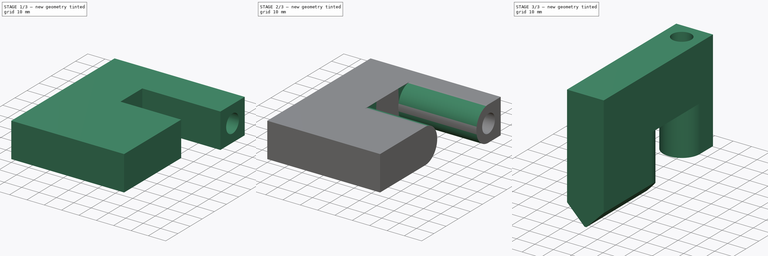
[diagram: build sequence overview — one tinted view per stage of 3, left to right]
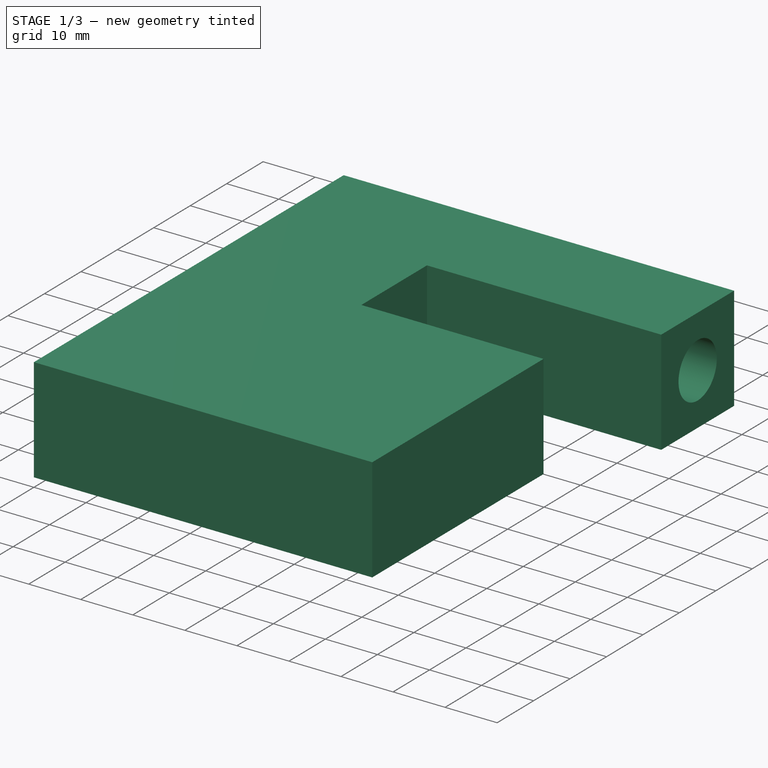
[diagram: stage 1 of 3 — iso view after this stage's code; geometry added in this stage tinted green]
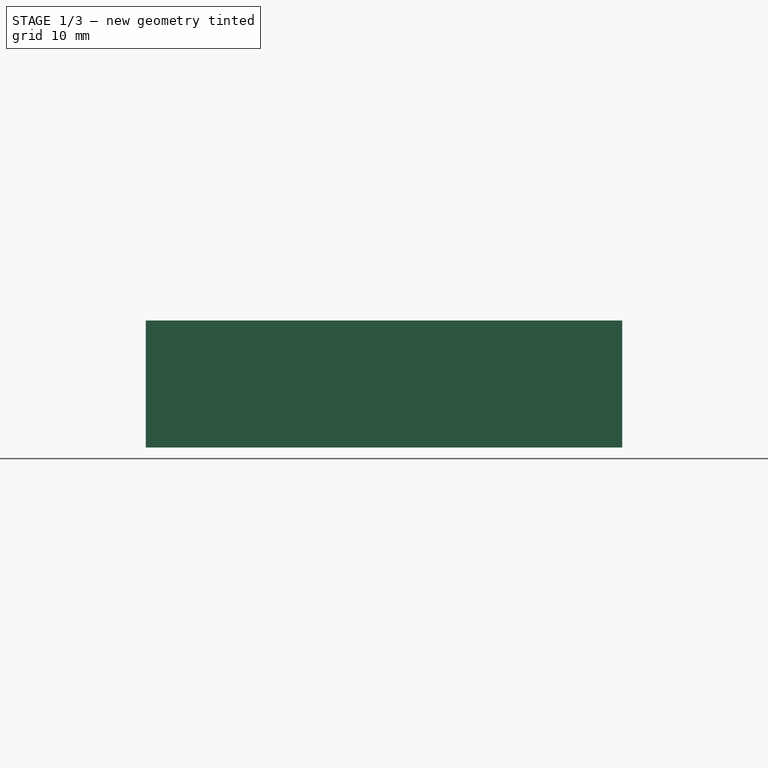
[diagram: stage 1 of 3 — front view after this stage's code; geometry added in this stage tinted green]
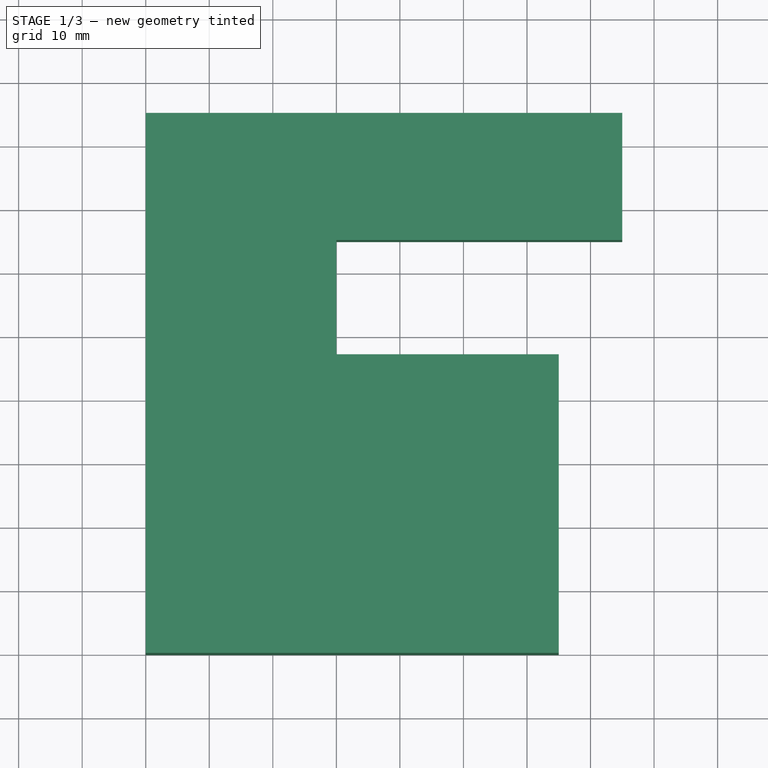
[diagram: stage 1 of 3 — top view after this stage's code; geometry added in this stage tinted green]
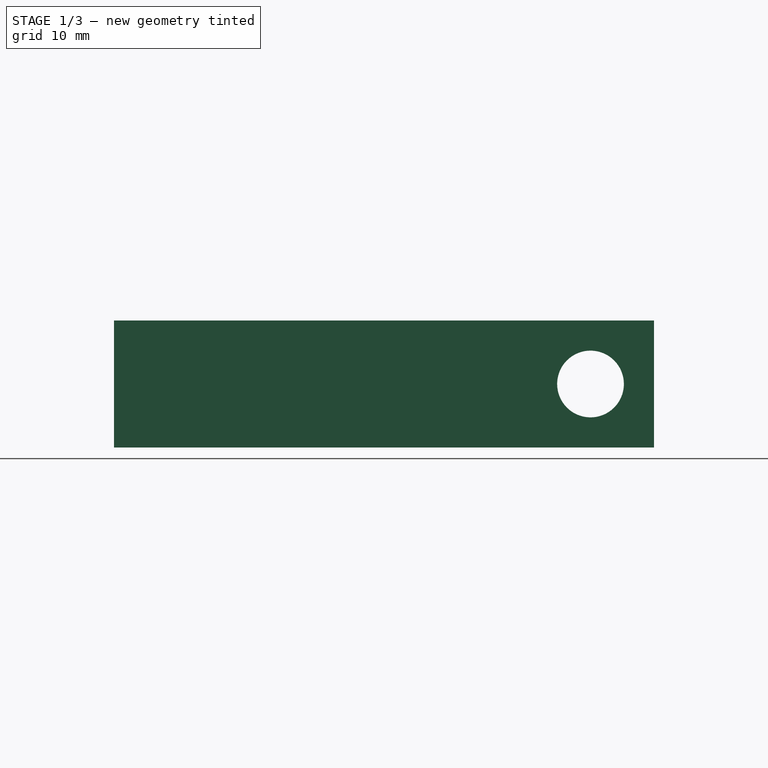
[diagram: stage 1 of 3 — right view after this stage's code; geometry added in this stage tinted green]
FCSTD DOCUMENT  (FreeCAD 0.17R7529 (Git))
Label: x_end_square_check
License: CreativeCommons Attribution-ShareAlike
LicenseURL: http://creativecommons.org/licenses/by-sa/4.0/
objects: Sketcher::SketchObject×4, App::FeaturePython×4, PartDesign::Pocket×3, PartDesign::Pad×1, Part::FeaturePython×1, PartDesign::Fillet×1, PartDesign::Body×1
note: 15 computed .brp shape members not serialized (recipe doc carries the construction recipe); baked Part::Feature solids carry a one-line shape summary decoded from their .brp

FEATURE [Sketcher::SketchObject] Sketch
  MapMode = 5
  Support = -> [XY_Plane]
  sketch-geometry (8):
    g0: LineSegment StartX=0 StartY=0 StartZ=0 EndX=65 EndY=0 EndZ=0
    g1: LineSegment StartX=65 StartY=0 StartZ=0 EndX=65 EndY=47 EndZ=0
    g2: LineSegment StartX=65 StartY=47 StartZ=0 EndX=30 EndY=47 EndZ=0
    g3: LineSegment StartX=30 StartY=47 StartZ=0 EndX=30 EndY=65 EndZ=0
    g4: LineSegment StartX=30 StartY=65 StartZ=0 EndX=75 EndY=65 EndZ=0
    g5: LineSegment StartX=75 StartY=65 StartZ=0 EndX=75 EndY=85 EndZ=0
    g6: LineSegment StartX=75 StartY=85 StartZ=0 EndX=0 EndY=85 EndZ=0
    g7: LineSegment StartX=0 StartY=85 StartZ=0 EndX=0 EndY=0 EndZ=0
  constraints (23):
    c: Horizontal(g0)
    c: Coincident(g0,g1)
    c: Vertical(g1)
    c: Coincident(g1,g2)
    c: Horizontal(g2)
    c: Coincident(g2,g3)
    c: Coincident(g3,g4)
    c: Horizontal(g4)
    c: Coincident(g4,g5)
    c: Vertical(g5)
    c: Coincident(g5,g6)
    c: Horizontal(g6)
    c: Coincident(g6,g7)
    c: Coincident(g0,g7)
    c: Coincident(g0,g-1)
    c: Vertical(g7)
    c: Vertical(g3)
    c: DistanceX(g4,g4) = 45
    c: DistanceY(g3,g3) = 18
    c: DistanceY(g5,g5) = 20
    c: DistanceX(g1,g4) = 10
    c: DistanceX(g0,g0) = 65
    c: DistanceY(g7,g7) = 85
FEATURE [PartDesign::Pad] Pad
  Length = 20
  Length2 = 100
  Profile = -> Sketch
  Type = 0
FEATURE [Sketcher::SketchObject] Sketch001
  MapMode = 5
  Placement = pos=(75,0,0) rot=(0.57735,0.57735,0.57735;2.0944rad)
  Support = -> [Pad]
  sketch-geometry (1):
    g0: Circle CenterX=75 CenterY=10 CenterZ=0 NormalX=0 NormalY=0 NormalZ=1 Radius=5.25
  constraints (3):
    c: DistanceX(g-1,g0) = 75
    c: DistanceY(g-1,g0) = 10
    c: Radius(g0) = 5.25
FEATURE [PartDesign::Pocket] Pocket
  BaseFeature = -> Pad
  Length = 5
  Profile = -> Sketch001
  Type = 1
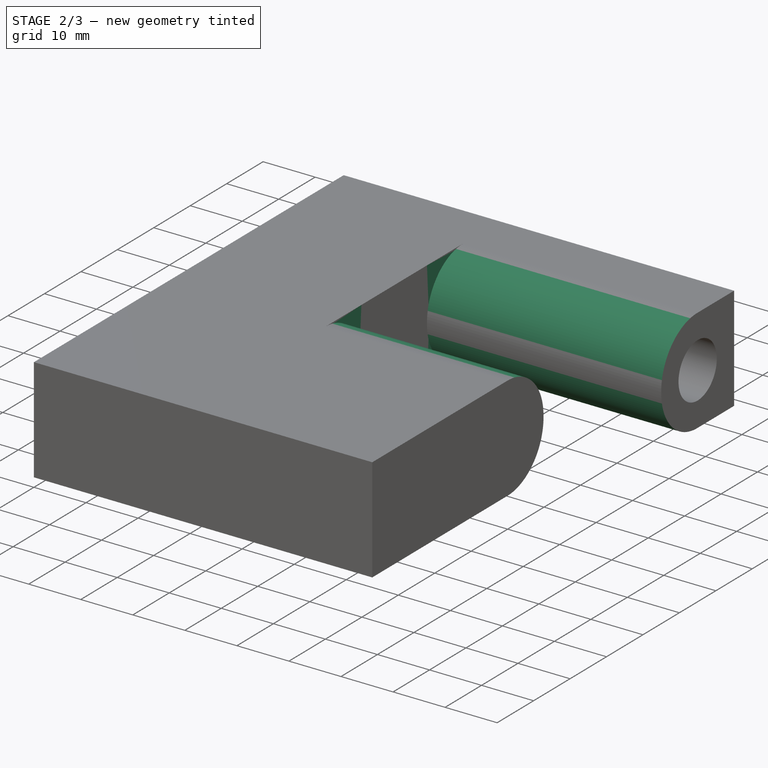
[diagram: stage 2 of 3 — iso view after this stage's code; geometry added in this stage tinted green]
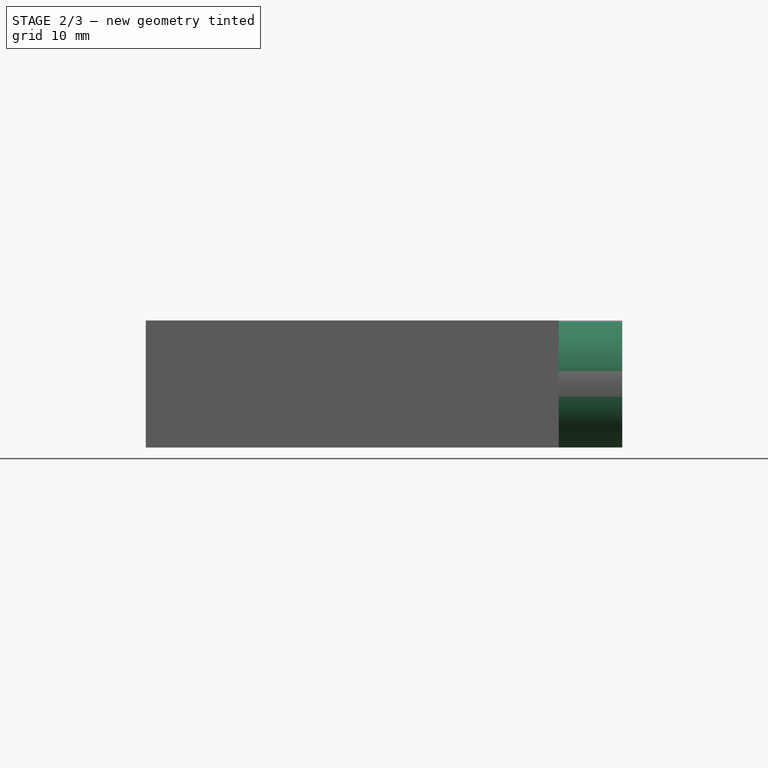
[diagram: stage 2 of 3 — front view after this stage's code; geometry added in this stage tinted green]
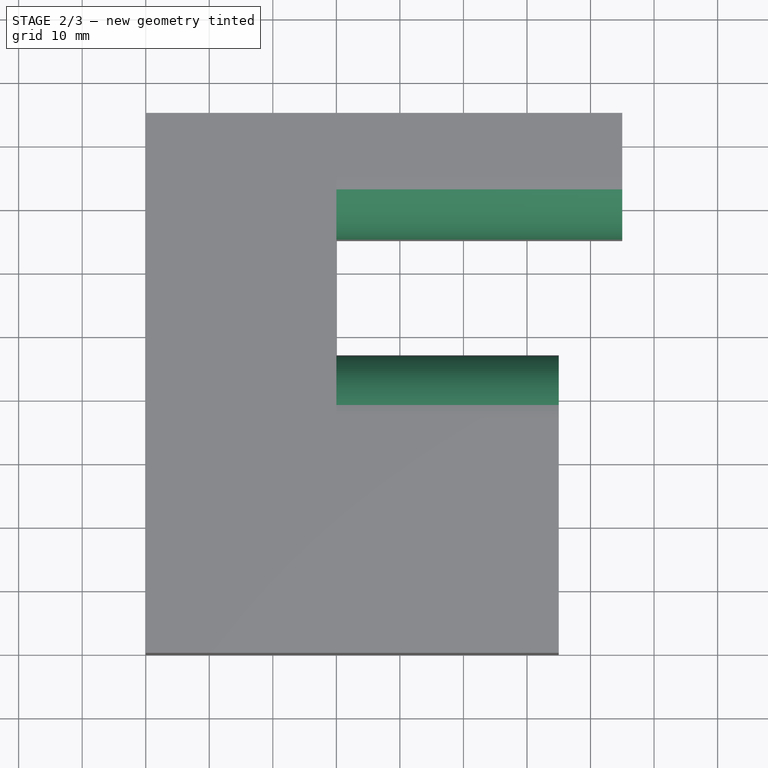
[diagram: stage 2 of 3 — top view after this stage's code; geometry added in this stage tinted green]
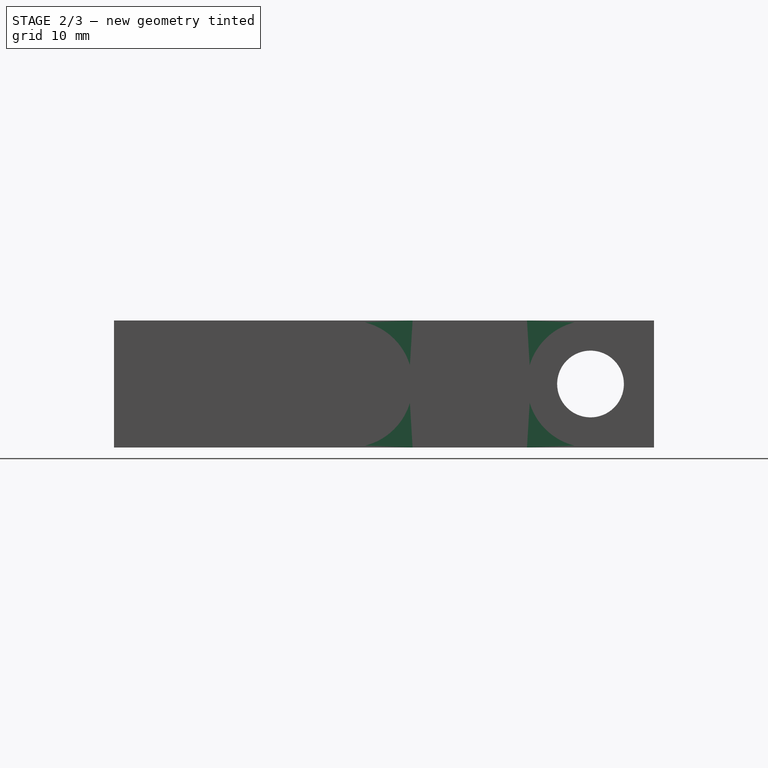
[diagram: stage 2 of 3 — right view after this stage's code; geometry added in this stage tinted green]
FEATURE [Part::FeaturePython] z_carriage_motor_v2_7_01  # a2plus imported part (geometry in sourceFile) (typed FeaturePython)
  Placement = pos=(0,0,0) rot=(0,0,1;3.14159rad)
  fixedPosition = true
  sourceFile = <userpath>/shared-j/devel/lulzbot/TAZ/Olive/production_parts/printed_parts/z_carriage_motor/z_carriage_motor_v2.7.fcstd
  timeLastImport = 1460053813
  updateColors = true
FEATURE [PartDesign::Fillet] Fillet
  Base = -> Pocket [Edge19,Edge12,Edge17,Edge14]
  BaseFeature = -> Pocket
  Radius = 9.9
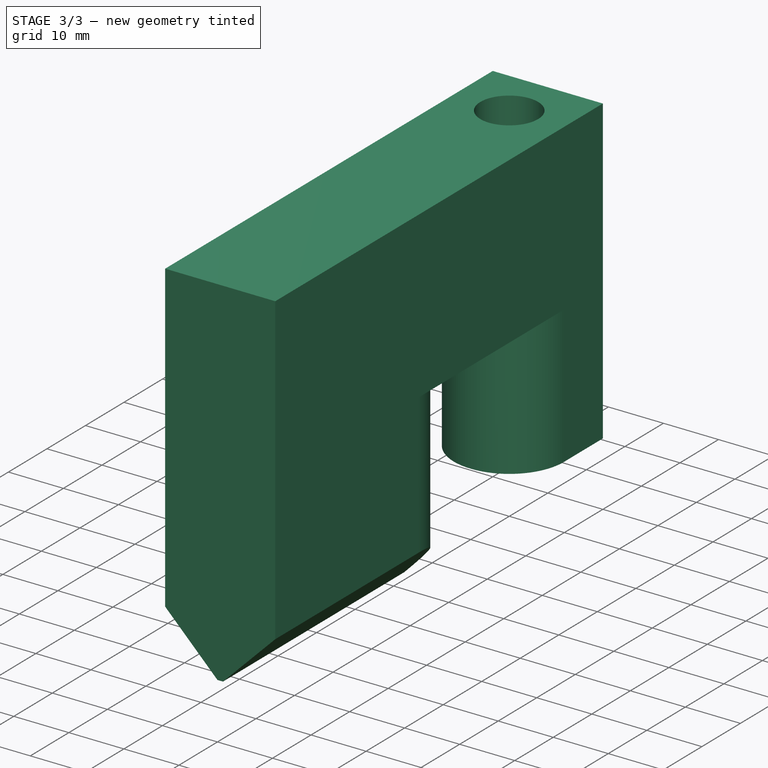
[diagram: stage 3 of 3 — iso view after this stage's code; geometry added in this stage tinted green]
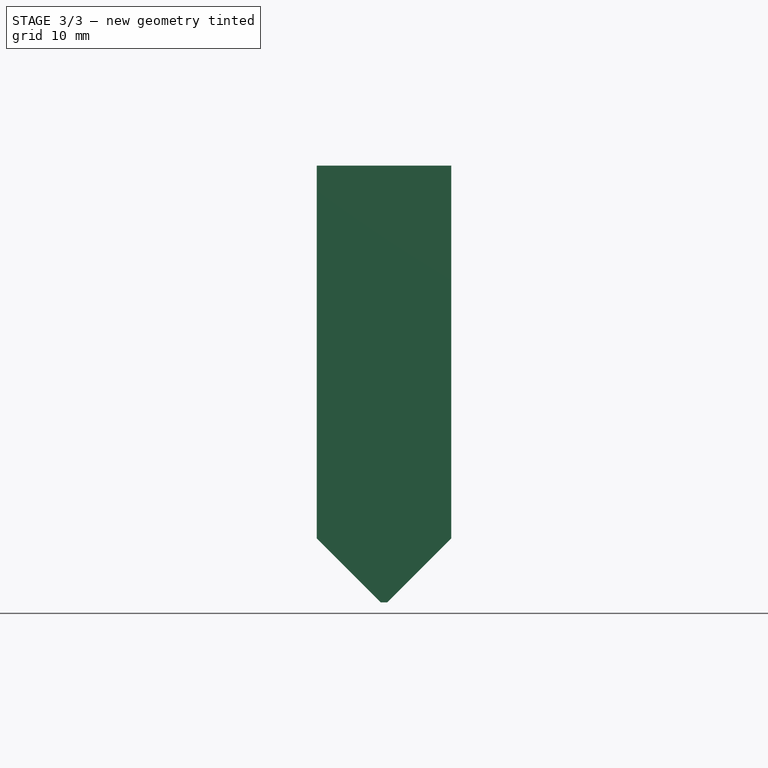
[diagram: stage 3 of 3 — front view after this stage's code; geometry added in this stage tinted green]
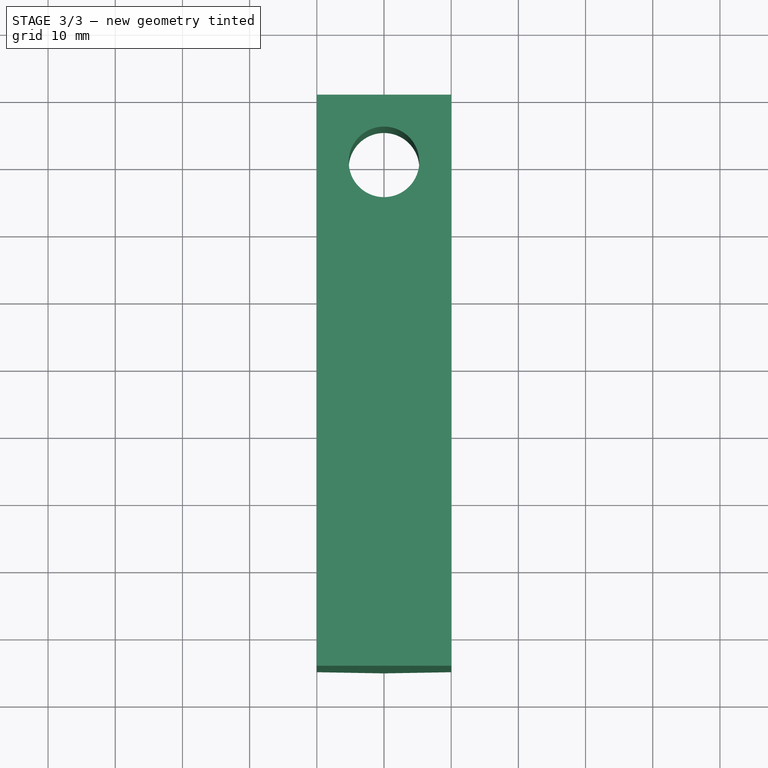
[diagram: stage 3 of 3 — top view after this stage's code; geometry added in this stage tinted green]
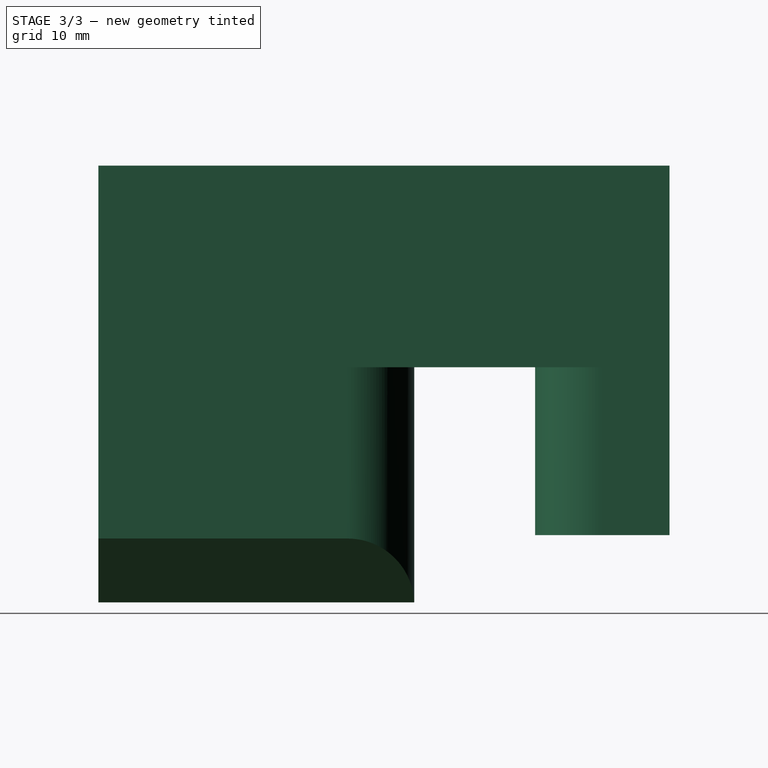
[diagram: stage 3 of 3 — right view after this stage's code; geometry added in this stage tinted green]
FEATURE [Sketcher::SketchObject] Sketch002
  ExternalGeometry = -> [Fillet]
  MapMode = 5
  Placement = pos=(0,0,0) rot=(1,0,0;1.5708rad)
  Support = -> [Fillet]
  sketch-geometry (6):
    g0: LineSegment StartX=55.1025 StartY=20.3975 StartZ=0 EndX=65 EndY=10.5 EndZ=0
    g1: LineSegment StartX=65 StartY=10.5 StartZ=0 EndX=65 EndY=9.5 EndZ=0
    g2: LineSegment StartX=65 StartY=9.5 StartZ=0 EndX=55.1025 EndY=-0.397549 EndZ=0
    g3: LineSegment StartX=55.1025 StartY=-0.397549 StartZ=0 EndX=66.7378 EndY=-0.397549 EndZ=0
    g4: LineSegment StartX=66.7378 StartY=-0.397549 StartZ=0 EndX=66.7378 EndY=20.3975 EndZ=0
    g5: LineSegment StartX=66.7378 StartY=20.3975 StartZ=0 EndX=55.1025 EndY=20.3975 EndZ=0
  constraints (16):
    c: Coincident(g0,g1)
    c: Coincident(g1,g2)
    c: Coincident(g2,g3)
    c: Coincident(g3,g4)
    c: Coincident(g4,g5)
    c: Coincident(g0,g5)
    c: Horizontal(g5)
    c: Horizontal(g3)
    c: Vertical(g4)
    c: Vertical(g1)
    c: Equal(g0,g2)
    c: DistanceY(g1,g1) = 1
    c: DistanceY(g-1,g1) = 9.5
    c: Angle(g0,g2) = 1.5708
    c: PointOnObject(g0,g-3)
    c: Angle(g0,g5) = 0.785398
FEATURE [PartDesign::Pocket] Pocket001
  BaseFeature = -> Fillet
  Length = 48
  Placement = pos=(-10,-25,140) rot=(0,1,0;1.5708rad)
  Profile = -> Sketch002
  Type = 0
FEATURE [App::FeaturePython] planeConstraint01  # a2plus constraint (typed FeaturePython)
  Object1 = z_carriage_motor_v2_7_01
  Object2 = Pocket001
  SubElement1 = Face213
  SubElement2 = Face1
  Type = plane
  directionConstraint = 0
  offset = 0
FEATURE [App::FeaturePython] planeConstraint01_mirror  label="planeConstraint01_"  # a2plus constraint (typed FeaturePython)
  Object1 = z_carriage_motor_v2_7_01
  Object2 = Pocket001
  SubElement1 = Face213
  SubElement2 = Face1
  Type = plane
  directionConstraint = 0
  offset = 0
FEATURE [App::FeaturePython] axialConstraint01  # a2plus constraint (typed FeaturePython)
  Object1 = Pocket001
  Object2 = z_carriage_motor_v2_7_01
  SubElement1 = Face16
  SubElement2 = Face189
  Type = axial
  directionConstraint = 0
  lockRotation = false
FEATURE [App::FeaturePython] axialConstraint01_mirror  label="axialConstraint01_"  # a2plus constraint (typed FeaturePython)
  Object1 = Pocket001
  Object2 = z_carriage_motor_v2_7_01
  SubElement1 = Face16
  SubElement2 = Face189
  Type = axial
  directionConstraint = 0
  lockRotation = false
FEATURE [Sketcher::SketchObject] Sketch003
  MapMode = 5
  Placement = pos=(-10,-25,65) rot=(0.707107,0.707107,0;3.14159rad)
  Support = -> [Pocket001]
  sketch-geometry (4):
    g0: LineSegment StartX=64.7281 StartY=23.9206 StartZ=0 EndX=86.5622 EndY=23.9206 EndZ=0
    g1: LineSegment StartX=86.5622 StartY=23.9206 StartZ=0 EndX=86.5622 EndY=-5.13417 EndZ=0
    g2: LineSegment StartX=86.5622 StartY=-5.13417 StartZ=0 EndX=64.7281 EndY=-5.13417 EndZ=0
    g3: LineSegment StartX=64.7281 StartY=-5.13417 StartZ=0 EndX=64.7281 EndY=23.9206 EndZ=0
  constraints (8):
    c: Coincident(g0,g1)
    c: Coincident(g1,g2)
    c: Coincident(g2,g3)
    c: Coincident(g3,g0)
    c: Horizontal(g0)
    c: Horizontal(g2)
    c: Vertical(g1)
    c: Vertical(g3)
FEATURE [PartDesign::Pocket] Pocket002
  BaseFeature = -> Pocket001
  Length = 20
  Placement = pos=(-10,-25,140) rot=(0,1,0;1.5708rad)
  Profile = -> Sketch003
  Type = 0
FEATURE [PartDesign::Body] Body
  Model = -> [Sketch,Pad,Sketch001,Pocket,Fillet,Sketch002,Pocket001,Sketch003,Pocket002]
  Origin = -> BodyOrigin
  Tip = -> Pocket002
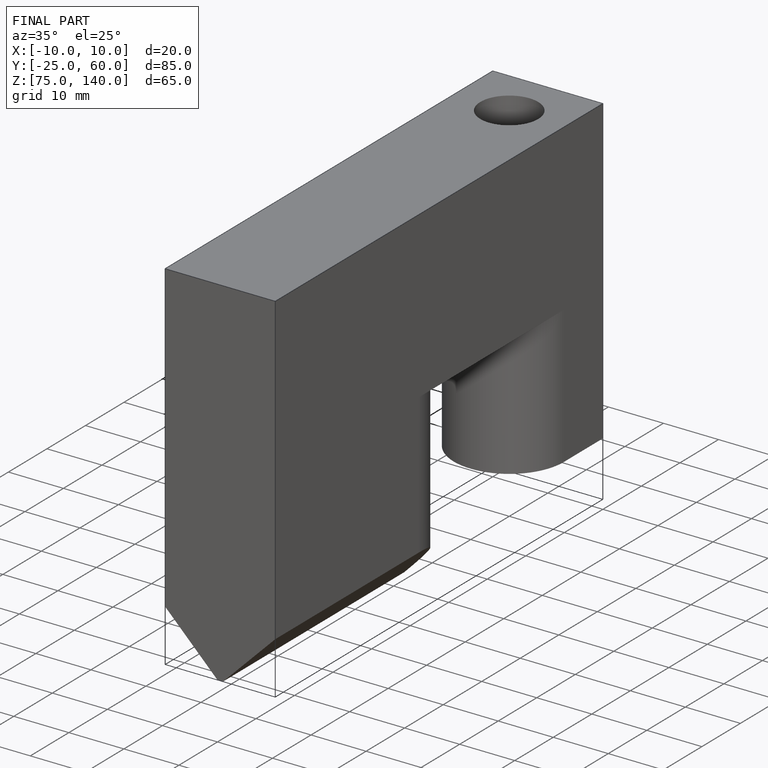
[diagram: finished part — iso view with bounding-box wireframe]
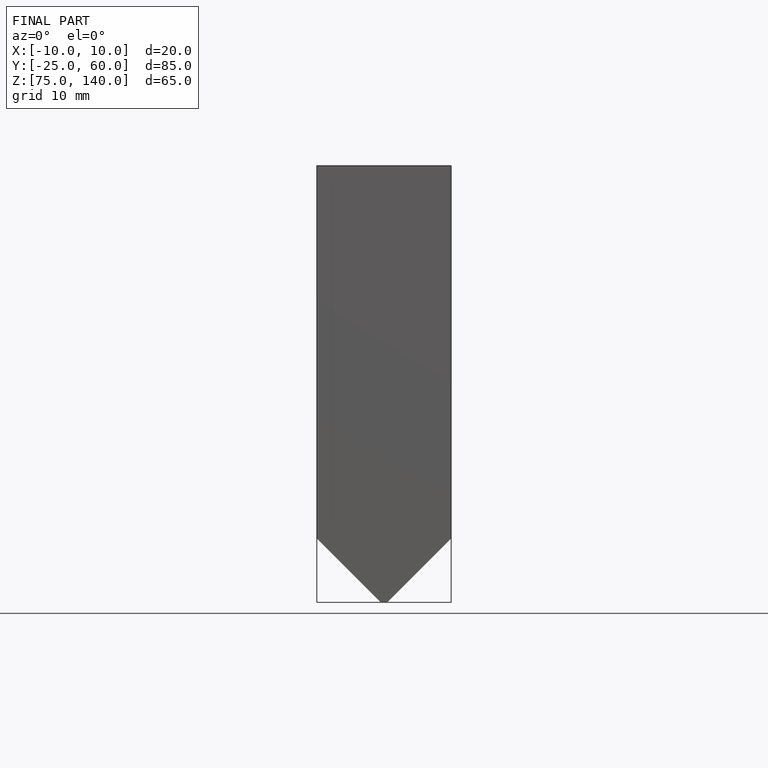
[diagram: finished part — front view with bounding-box wireframe]
